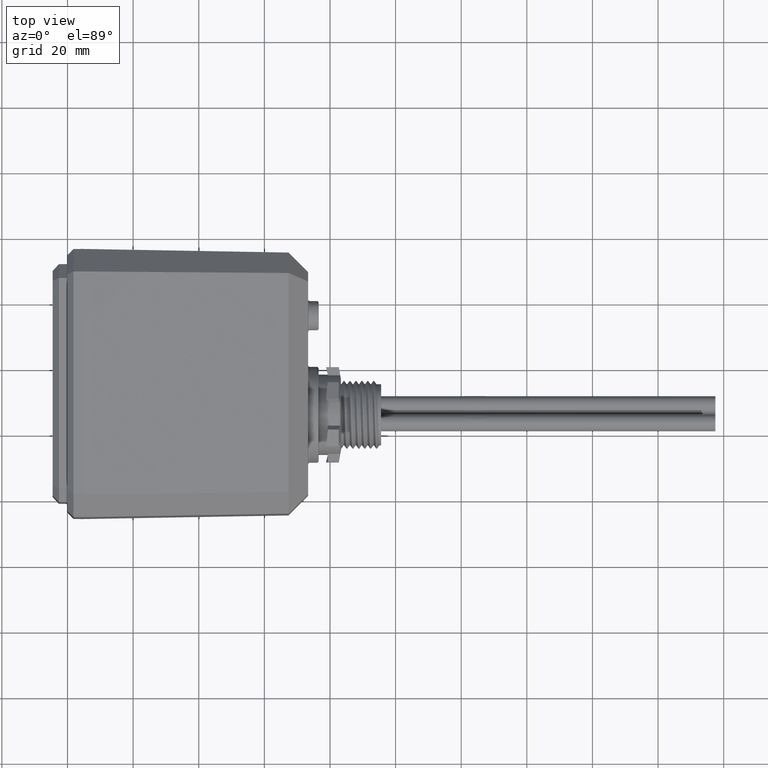
[diagram: clean part render]
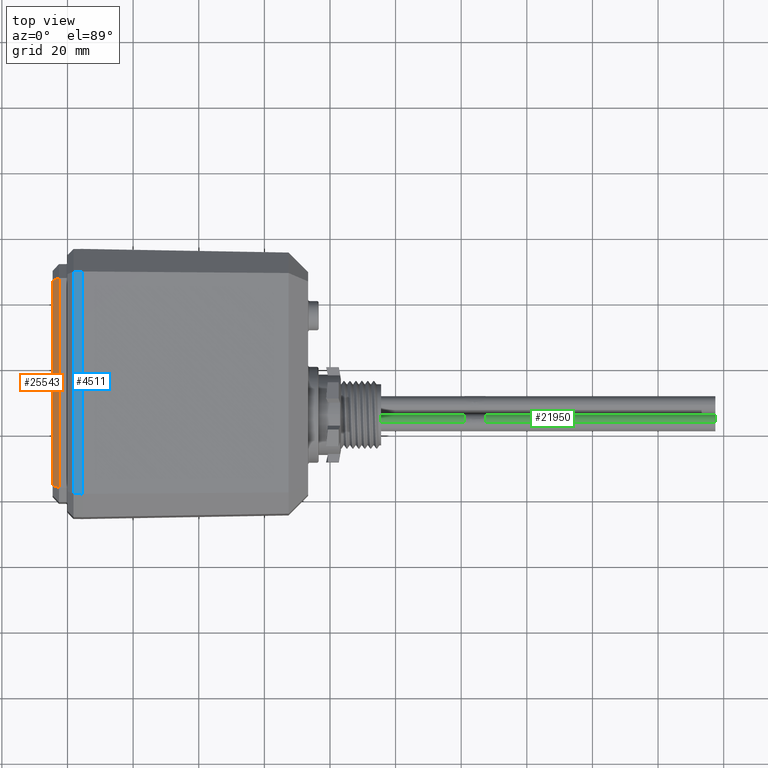
[diagram: same view with three faces highlighted in distinct colors, each labeled with its STEP entity id]
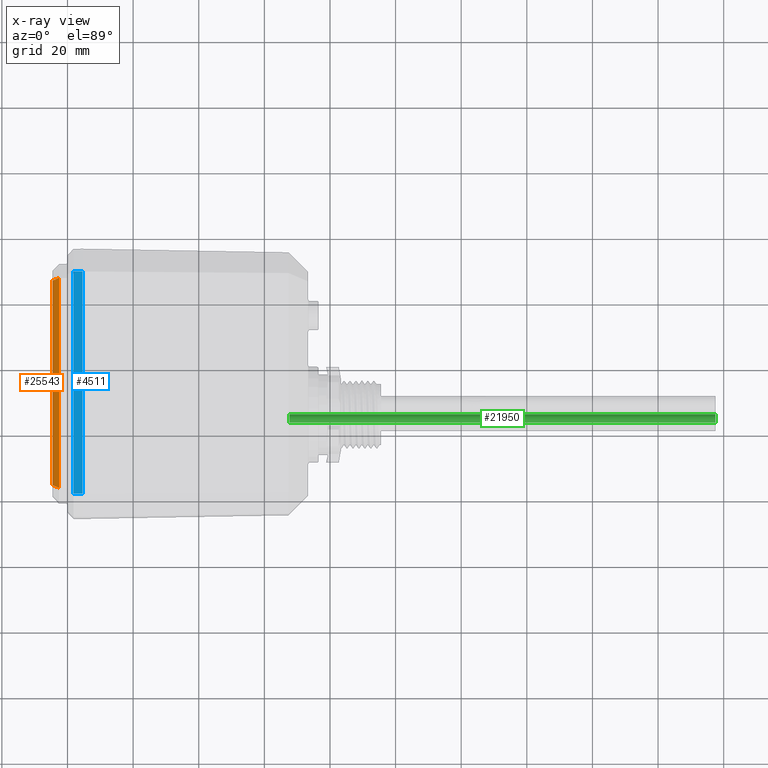
[diagram: x-ray of the same camera — body ghosted, the three highlighted faces saturated]
A machine part, top view with three faces highlighted in distinct colors.
The next image is the same camera in x-ray (body ghosted, the three faces saturated) — at least one of them is partly hidden behind the body in this view.
Their STEP definitions:

[orange] entity #25543 — the highlighted planar face has unit normal (0.7193, -0, -0.6947).
#5114 = VECTOR ( 'NONE', #19522, 39.37007874015748900 ) ;
#7364 = EDGE_CURVE ( 'NONE', #29247, #34880, #34450, .T. ) ;
#9304 = CARTESIAN_POINT ( 'NONE',  ( -2.464087206771117700, 0.1366113836938676600, -1.433204843503095300 ) ) ;
#11076 = ORIENTED_EDGE ( 'NONE', *, *, #7364, .F. ) ;
#12113 = AXIS2_PLACEMENT_3D ( 'NONE', #15507, #15458, #15386 ) ;
#13024 = ORIENTED_EDGE ( 'NONE', *, *, #31135, .T. ) ;
#14123 = FACE_OUTER_BOUND ( 'NONE', #22216, .T. ) ;
#14372 = CARTESIAN_POINT ( 'NONE',  ( -2.464087206771118600, 2.655803167965840000, -1.433204843503095700 ) ) ;
#15386 = DIRECTION ( 'NONE',  ( -1.186949707588915400E-016, 1.000000000000000000, -2.051927251632536000E-016 ) ) ;
#15458 = DIRECTION ( 'NONE',  ( 0.7193398003386497500, -5.715682752504400900E-017, -0.6946583704589987000 ) ) ;
#15507 = CARTESIAN_POINT ( 'NONE',  ( -2.540225151094942700, 1.396207275829854000, -1.512047992880114300 ) ) ;
#16247 = PLANE ( 'NONE',  #12113 ) ;
#19216 = LINE ( 'NONE', #26899, #19444 ) ;
#19444 = VECTOR ( 'NONE', #27130, 39.37007874015748100 ) ;
#19522 = DIRECTION ( 'NONE',  ( -0.6657346136289221700, 0.2855540139848913300, -0.6893883733523985500 ) ) ;
#19748 = CARTESIAN_POINT ( 'NONE',  ( -2.464656839299263600, 0.1368557165730342800, -1.433794715253711600 ) ) ;
#19800 = VECTOR ( 'NONE', #21671, 39.37007874015748900 ) ;
#19806 = LINE ( 'NONE', #22490, #19800 ) ;
#21159 = ORIENTED_EDGE ( 'NONE', *, *, #26928, .T. ) ;
#21671 = DIRECTION ( 'NONE',  ( -0.6657346136289221700, -0.2855540139848917700, -0.6893883733523983300 ) ) ;
#21998 = CARTESIAN_POINT ( 'NONE',  ( -2.540225151094942700, 2.623145266193670700, -1.512047992880114700 ) ) ;
#22216 = EDGE_LOOP ( 'NONE', ( #32933, #21159, #13024, #11076 ) ) ;
#22490 = CARTESIAN_POINT ( 'NONE',  ( -2.773469978431326100, 2.523099399081461000, -1.753580082121785500 ) ) ;
#22605 = VECTOR ( 'NONE', #24584, 39.37007874015748100 ) ;
#23083 = VERTEX_POINT ( 'NONE', #9304 ) ;
#23207 = CARTESIAN_POINT ( 'NONE',  ( -2.540225151094942700, 0.1692692854660377000, -1.512047992880114300 ) ) ;
#24275 = VERTEX_POINT ( 'NONE', #14372 ) ;
#24584 = DIRECTION ( 'NONE',  ( -1.186949707588915400E-016, 1.000000000000000000, -2.051927251632536000E-016 ) ) ;
#24656 = CARTESIAN_POINT ( 'NONE',  ( -2.540225151094942700, 2.728554353332404600, -1.512047992880114700 ) ) ;
#25543 = ADVANCED_FACE ( 'NONE', ( #14123 ), #16247, .F. ) ;
#26899 = CARTESIAN_POINT ( 'NONE',  ( -2.464087206771118600, 1.396207275829854000, -1.433204843503095500 ) ) ;
#26928 = EDGE_CURVE ( 'NONE', #23083, #24275, #19216, .T. ) ;
#27130 = DIRECTION ( 'NONE',  ( -6.633462728620886100E-017, 1.000000000000000000, -1.509720022568047100E-016 ) ) ;
#27225 = LINE ( 'NONE', #19748, #5114 ) ;
#29247 = VERTEX_POINT ( 'NONE', #23207 ) ;
#31135 = EDGE_CURVE ( 'NONE', #24275, #34880, #19806, .T. ) ;
#32933 = ORIENTED_EDGE ( 'NONE', *, *, #35051, .F. ) ;
#34450 = LINE ( 'NONE', #24656, #22605 ) ;
#34880 = VERTEX_POINT ( 'NONE', #21998 ) ;
#35051 = EDGE_CURVE ( 'NONE', #23083, #29247, #27225, .T. ) ;

[blue] entity #4511 — the highlighted planar face has unit normal (-0.0175, 0, 0.9998).
#865 = LINE ( 'NONE', #11282, #9497 ) ;
#1041 = DIRECTION ( 'NONE',  ( 0.9998215707699758000, -0.007228834559800702300, 0.01745195043442238800 ) ) ;
#2137 = VECTOR ( 'NONE', #17065, 39.37007874015748100 ) ;
#3068 = CARTESIAN_POINT ( 'NONE',  ( -2.182225151094942600, 0.06127181371142095800, -1.251319031868114000 ) ) ;
#3101 = ORIENTED_EDGE ( 'NONE', *, *, #21148, .T. ) ;
#3807 = DIRECTION ( 'NONE',  ( 1.186949707588915400E-016, -1.000000000000000000, 2.051927251632536000E-016 ) ) ;
#3853 = CARTESIAN_POINT ( 'NONE',  ( -2.290263227305843900, 0.06386019832730369100, -1.253204843503094900 ) ) ;
#4511 = ADVANCED_FACE ( 'NONE', ( #13491 ), #17855, .T. ) ;
#6480 = EDGE_CURVE ( 'NONE', #28310, #32528, #6846, .T. ) ;
#6846 = LINE ( 'NONE', #18879, #2137 ) ;
#9497 = VECTOR ( 'NONE', #1041, 39.37007874015748100 ) ;
#9754 = CARTESIAN_POINT ( 'NONE',  ( -2.290263227305844300, 2.730361609192997600, -1.253204843503095600 ) ) ;
#10919 = DIRECTION ( 'NONE',  ( 0.9998476951563912700, 1.222579997774953000E-016, 0.01745240643728348000 ) ) ;
#11282 = CARTESIAN_POINT ( 'NONE',  ( -2.201521762608283700, 0.06141133061750948100, -1.251655855474973900 ) ) ;
#11505 = LINE ( 'NONE', #31882, #11708 ) ;
#11708 = VECTOR ( 'NONE', #31737, 39.37007874015748100 ) ;
#13214 = CARTESIAN_POINT ( 'NONE',  ( -2.290263227305843900, 0.06205294246671069800, -1.253204843503095100 ) ) ;
#13491 = FACE_OUTER_BOUND ( 'NONE', #27633, .T. ) ;
#15899 = VERTEX_POINT ( 'NONE', #9754 ) ;
#17065 = DIRECTION ( 'NONE',  ( -1.186949707588915400E-016, 1.000000000000000000, -2.051927251632536000E-016 ) ) ;
#17175 = ORIENTED_EDGE ( 'NONE', *, *, #23277, .T. ) ;
#17664 = ORIENTED_EDGE ( 'NONE', *, *, #6480, .T. ) ;
#17855 = PLANE ( 'NONE',  #19140 ) ;
#18083 = CARTESIAN_POINT ( 'NONE',  ( -2.182225151094943100, 2.731142737948288000, -1.251319031868114700 ) ) ;
#18879 = CARTESIAN_POINT ( 'NONE',  ( -2.182225151094943100, 2.731142737948288000, -1.251319031868114700 ) ) ;
#19140 = AXIS2_PLACEMENT_3D ( 'NONE', #24007, #19759, #10919 ) ;
#19759 = DIRECTION ( 'NONE',  ( -0.01745240643728348000, 2.030899604455927900E-016, 0.9998476951563912700 ) ) ;
#21148 = EDGE_CURVE ( 'NONE', #32133, #28310, #865, .T. ) ;
#23277 = EDGE_CURVE ( 'NONE', #15899, #32133, #32021, .T. ) ;
#24007 = CARTESIAN_POINT ( 'NONE',  ( -2.182225151094943100, 2.731142737948288000, -1.251319031868114700 ) ) ;
#25964 = ORIENTED_EDGE ( 'NONE', *, *, #26755, .F. ) ;
#26755 = EDGE_CURVE ( 'NONE', #15899, #32528, #11505, .T. ) ;
#27633 = EDGE_LOOP ( 'NONE', ( #25964, #17175, #3101, #17664 ) ) ;
#28310 = VERTEX_POINT ( 'NONE', #3068 ) ;
#31737 = DIRECTION ( 'NONE',  ( 0.9998215707699758000, 0.007228834559800947700, 0.01745195043442238800 ) ) ;
#31882 = CARTESIAN_POINT ( 'NONE',  ( -2.182225151094943100, 2.731142737948288000, -1.251319031868114700 ) ) ;
#32021 = LINE ( 'NONE', #3853, #32160 ) ;
#32133 = VERTEX_POINT ( 'NONE', #13214 ) ;
#32160 = VECTOR ( 'NONE', #3807, 39.37007874015748100 ) ;
#32528 = VERTEX_POINT ( 'NONE', #18083 ) ;

[green] entity #21950 — the highlighted face is a freeform B-spline surface patch.
#115 = ORIENTED_EDGE ( 'NONE', *, *, #3141, .F. ) ;
#474 = CARTESIAN_POINT ( 'NONE',  ( 5.411018466745666400, 0.9294735889950731500, -2.188531562838795800 ) ) ;
#1203 = CARTESIAN_POINT ( 'NONE',  ( 0.3004092761689646800, 0.9300732545133461000, -1.983533603864545200 ) ) ;
#1766 = VECTOR ( 'NONE', #19957, 39.37007874015748100 ) ;
#3141 = EDGE_CURVE ( 'NONE', #28315, #10231, #12250, .T. ) ;
#3224 = CARTESIAN_POINT ( 'NONE',  ( 0.2997184667456669900, 0.9294735889950740400, -2.188531562838792200 ) ) ;
#3939 = AXIS2_PLACEMENT_3D ( 'NONE', #9192, #9124, #9076 ) ;
#4399 = VERTEX_POINT ( 'NONE', #9820 ) ;
#5968 =( BOUNDED_SURFACE ( )  B_SPLINE_SURFACE ( 3, 1, ( 
 ( #34678, #34673 ),
 ( #34611, #34565 ),
 ( #34493, #34439 ),
 ( #34335, #34325 ) ),
 .UNSPECIFIED., .F., .F., .T. ) 
 B_SPLINE_SURFACE_WITH_KNOTS ( ( 4, 4 ),
 ( 2, 2 ),
 ( 0.0000000000000000000, 1.000000000000000000 ),
 ( 0.0000000000000000000, 1.000000000000000000 ),
 .UNSPECIFIED. ) 
 GEOMETRIC_REPRESENTATION_ITEM ( )  RATIONAL_B_SPLINE_SURFACE ( (
 ( 1.000000000000000000, 1.000000000000000000),
 ( 0.3333333333333333700, 0.3333333333333333700),
 ( 0.3333333333333333700, 0.3333333333333333700),
 ( 1.000000000000000000, 1.000000000000000000) ) ) 
 REPRESENTATION_ITEM ( '' )  SURFACE ( )  );
#6489 = DIRECTION ( 'NONE',  ( -0.9999930519162652000, -0.001584056151563255800, 0.003374445925268835300 ) ) ;
#9076 = DIRECTION ( 'NONE',  ( 0.003369802064866775400, 0.002925197650107685200, 0.9999900437768125500 ) ) ;
#9124 = DIRECTION ( 'NONE',  ( -0.9999930519162652000, -0.001584056151563255800, 0.003374445925268835300 ) ) ;
#9192 = CARTESIAN_POINT ( 'NONE',  ( 0.3000638714573158300, 0.9297734217542100700, -2.086032583351668600 ) ) ;
#9820 = CARTESIAN_POINT ( 'NONE',  ( 5.411709276168963400, 0.9300732545133452200, -1.983533603864548800 ) ) ;
#10231 = VERTEX_POINT ( 'NONE', #474 ) ;
#10774 = ORIENTED_EDGE ( 'NONE', *, *, #24154, .T. ) ;
#12250 = LINE ( 'NONE', #20028, #1766 ) ;
#13985 = DIRECTION ( 'NONE',  ( 1.000000000000000000, -1.603416739575605000E-016, -6.948139204827621900E-016 ) ) ;
#14642 = CARTESIAN_POINT ( 'NONE',  ( 5.411363871457314900, 0.9297734217542091800, -2.086032583351672600 ) ) ;
#18689 = EDGE_CURVE ( 'NONE', #23401, #28315, #30570, .T. ) ;
#19957 = DIRECTION ( 'NONE',  ( 1.000000000000000000, -1.603416739575605000E-016, -6.948139204827621900E-016 ) ) ;
#20028 = CARTESIAN_POINT ( 'NONE',  ( 0.2997184667456669900, 0.9294735889950740400, -2.188531562838792200 ) ) ;
#21950 = ADVANCED_FACE ( 'NONE', ( #23725 ), #5968, .F. ) ;
#22572 = CARTESIAN_POINT ( 'NONE',  ( 0.3004092761689646800, 0.9300732545133461000, -1.983533603864545200 ) ) ;
#23401 = VERTEX_POINT ( 'NONE', #1203 ) ;
#23507 = EDGE_CURVE ( 'NONE', #4399, #10231, #28164, .T. ) ;
#23725 = FACE_OUTER_BOUND ( 'NONE', #26447, .T. ) ;
#24154 = EDGE_CURVE ( 'NONE', #23401, #4399, #27014, .T. ) ;
#26447 = EDGE_LOOP ( 'NONE', ( #115, #34162, #10774, #34220 ) ) ;
#26915 = VECTOR ( 'NONE', #13985, 39.37007874015748100 ) ;
#27014 = LINE ( 'NONE', #22572, #26915 ) ;
#28164 = CIRCLE ( 'NONE', #31115, 0.1025000000000001000 ) ;
#28315 = VERTEX_POINT ( 'NONE', #3224 ) ;
#29592 = DIRECTION ( 'NONE',  ( 0.003369802064867775100, 0.002925197650107685200, 0.9999900437768125500 ) ) ;
#30570 = CIRCLE ( 'NONE', #3939, 0.1025000000000001000 ) ;
#31115 = AXIS2_PLACEMENT_3D ( 'NONE', #14642, #6489, #29592 ) ;
#34162 = ORIENTED_EDGE ( 'NONE', *, *, #18689, .F. ) ;
#34220 = ORIENTED_EDGE ( 'NONE', *, *, #23507, .T. ) ;
#34325 = CARTESIAN_POINT ( 'NONE',  ( 5.411018466745666400, 0.9294735889950731500, -2.188531562838795800 ) ) ;
#34335 = CARTESIAN_POINT ( 'NONE',  ( 0.2997184667456669900, 0.9294735889950740400, -2.188531562838792200 ) ) ;
#34439 = CARTESIAN_POINT ( 'NONE',  ( 5.410691714928830700, 1.134472454725379100, -2.189130129909624900 ) ) ;
#34493 = CARTESIAN_POINT ( 'NONE',  ( 0.2993917149288313200, 1.134472454725379900, -2.189130129909621300 ) ) ;
#34565 = CARTESIAN_POINT ( 'NONE',  ( 5.411382524352127600, 1.135072120243651300, -1.984132170935378100 ) ) ;
#34611 = CARTESIAN_POINT ( 'NONE',  ( 0.3000825243521289500, 1.135072120243652200, -1.984132170935374500 ) ) ;
#34673 = CARTESIAN_POINT ( 'NONE',  ( 5.411709276168964200, 0.9300732545133452200, -1.983533603864548800 ) ) ;
#34678 = CARTESIAN_POINT ( 'NONE',  ( 0.3004092761689646800, 0.9300732545133461000, -1.983533603864545200 ) ) ;